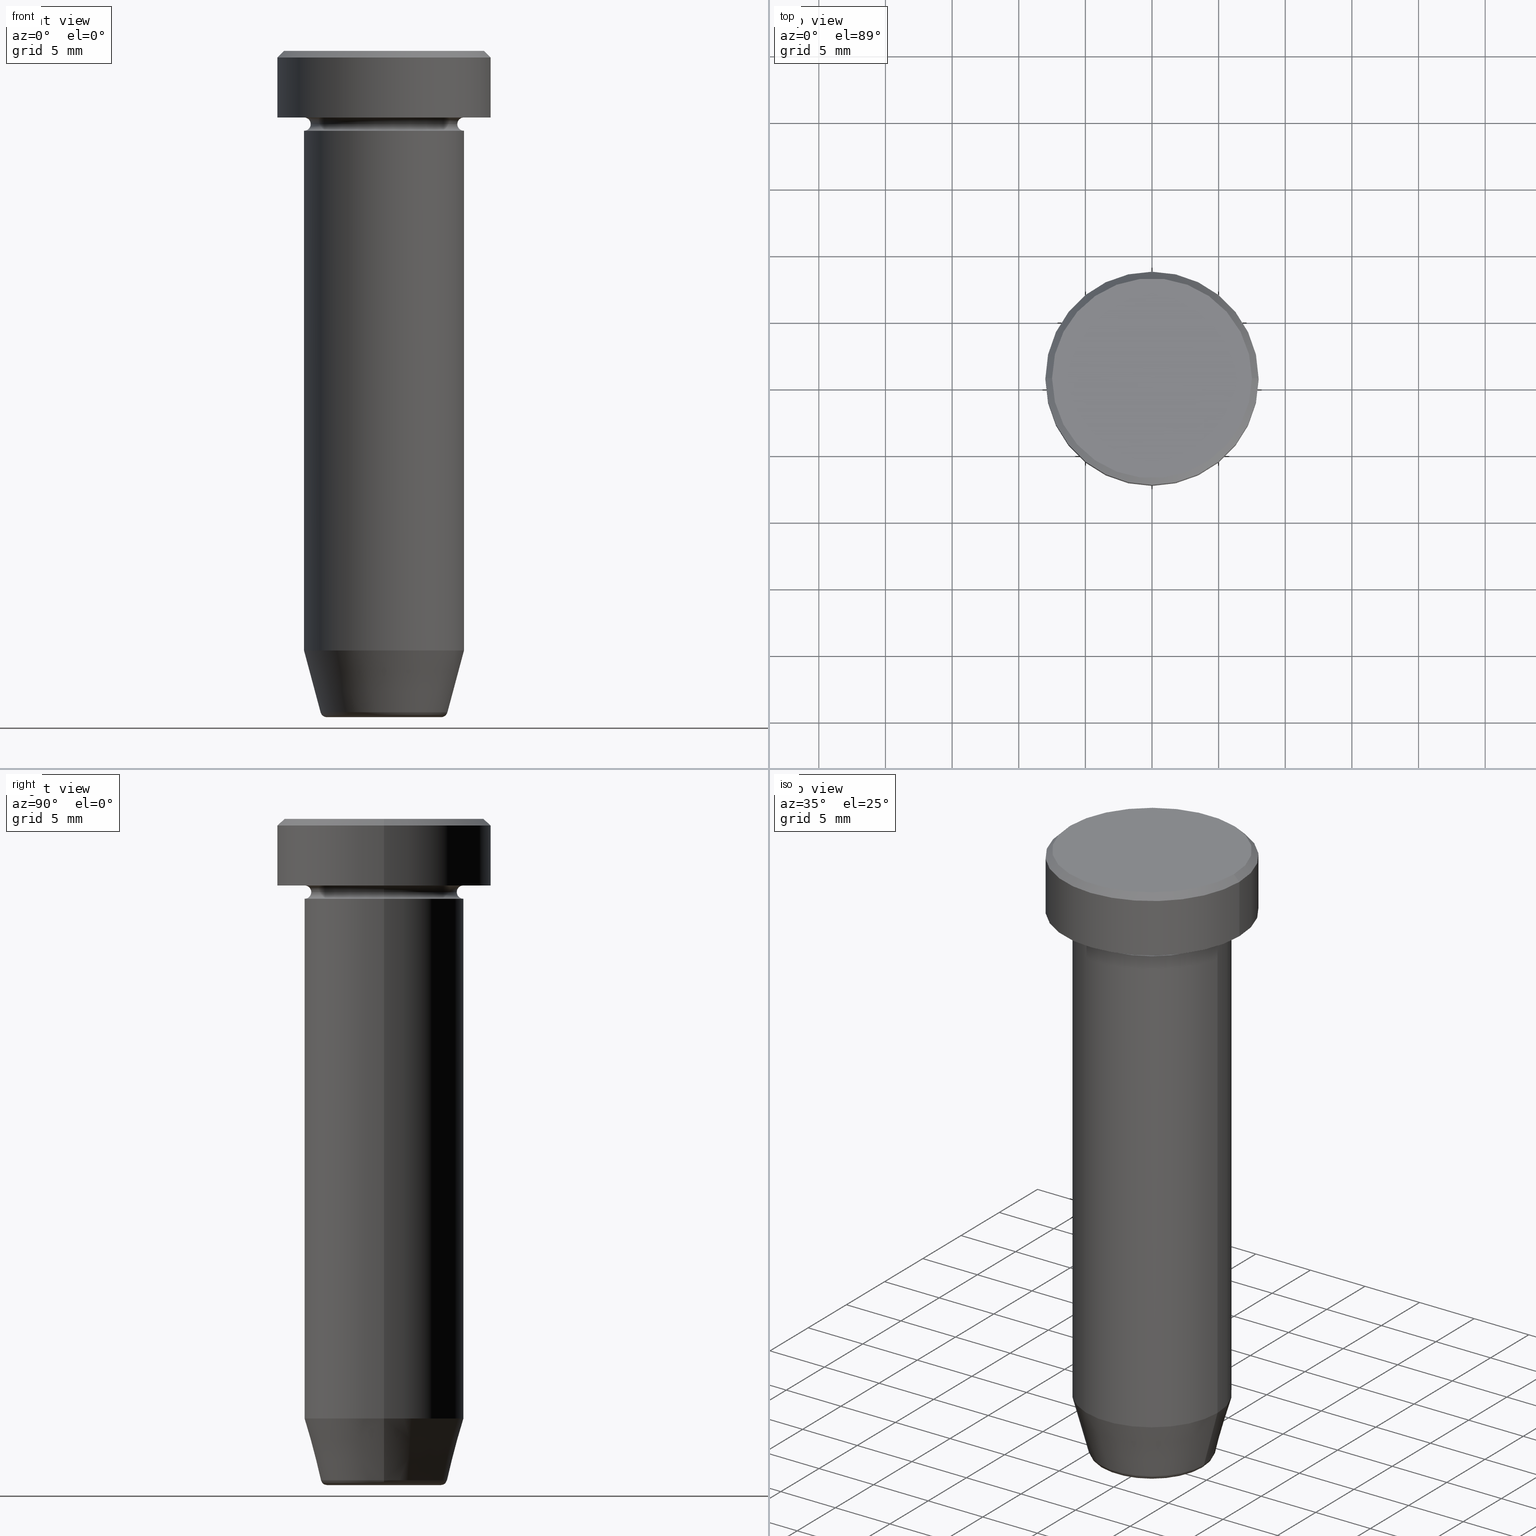
[diagram: canonical four-view strip — front | top / right | iso, engineering-drawing reading convention]
A machine part, canonical four-view strip (front | top / right | iso — engineering-drawing reading convention). The complete STEP part file that produces these views, byte-faithful:
ISO-10303-21;
HEADER;
FILE_DESCRIPTION (( 'STEP AP203' ),
    '1' );
FILE_NAME ('cc43.STEP',
    '2024-01-02T23:16:47',
    ( '' ),
    ( '' ),
    'SwSTEP 2.0',
    'SolidWorks 2019',
    '' );
FILE_SCHEMA (( 'CONFIG_CONTROL_DESIGN' ));
ENDSEC;

DATA;
#1 = CIRCLE ( 'NONE', #482, 4.276590543854903004 ) ;
#2 = LINE ( 'NONE', #74, #53 ) ;
#3 = EDGE_LOOP ( 'NONE', ( #443, #418 ) ) ;
#4 = CARTESIAN_POINT ( 'NONE',  ( 6.000000000000000000, 0.000000000000000000, -5.500000000000000000 ) ) ;
#5 = ORIENTED_EDGE ( 'NONE', *, *, #183, .F. ) ;
#6 = PERSON_AND_ORGANIZATION_ROLE ( 'design_supplier' ) ;
#7 = CARTESIAN_POINT ( 'NONE',  ( -6.000000000000000000, 7.347880794884119736E-16, -12.50000000000000000 ) ) ;
#8 = APPLICATION_CONTEXT ( 'configuration controlled 3d designs of mechanical parts and assemblies' ) ;
#9 = SECURITY_CLASSIFICATION_LEVEL ( 'unclassified' ) ;
#10 = CIRCLE ( 'NONE', #25, 8.000000000000000000 ) ;
#11 = CARTESIAN_POINT ( 'NONE',  ( 0.000000000000000000, 0.000000000000000000, 0.000000000000000000 ) ) ;
#12 = AXIS2_PLACEMENT_3D ( 'NONE', #489, #63, #444 ) ;
#13 = DIRECTION ( 'NONE',  ( 1.000000000000000000, 0.000000000000000000, 0.000000000000000000 ) ) ;
#14 = PERSON_AND_ORGANIZATION ( #270, #120 ) ;
#15 = CARTESIAN_POINT ( 'NONE',  ( -8.000000000000000000, 9.797174393178825657E-16, -0.5000000000000004441 ) ) ;
#16 = ORIENTED_EDGE ( 'NONE', *, *, #572, .T. ) ;
#17 = CARTESIAN_POINT ( 'NONE',  ( -5.500000000000000000, 7.041719095097280880E-16, -5.500000000000000000 ) ) ;
#18 = ADVANCED_FACE ( 'NONE', ( #167 ), #108, .F. ) ;
#19 = CIRCLE ( 'NONE', #119, 6.000000000000000000 ) ;
#20 = DIRECTION ( 'NONE',  ( 1.000000000000000000, 0.000000000000000000, 0.000000000000000000 ) ) ;
#21 = ORIENTED_EDGE ( 'NONE', *, *, #66, .F. ) ;
#22 = ORIENTED_EDGE ( 'NONE', *, *, #215, .T. ) ;
#23 = ORIENTED_EDGE ( 'NONE', *, *, #183, .T. ) ;
#24 = EDGE_CURVE ( 'NONE', #308, #35, #344, .T. ) ;
#25 = AXIS2_PLACEMENT_3D ( 'NONE', #304, #353, #252 ) ;
#26 = AXIS2_PLACEMENT_3D ( 'NONE', #73, #590, #546 ) ;
#27 = ORIENTED_EDGE ( 'NONE', *, *, #341, .T. ) ;
#28 = PRODUCT_DEFINITION ( 'NEZN�M�', '', #335, #182 ) ;
#29 = CARTESIAN_POINT ( 'NONE',  ( -6.000000000000000000, 7.347880794884119736E-16, -12.50000000000000000 ) ) ;
#30 = ORIENTED_EDGE ( 'NONE', *, *, #510, .T. ) ;
#31 = CARTESIAN_POINT ( 'NONE',  ( 0.000000000000000000, 0.000000000000000000, -12.50000000000000000 ) ) ;
#32 = DIRECTION ( 'NONE',  ( 1.224646799147353207E-16, 1.000000000000000000, 0.000000000000000000 ) ) ;
#33 = VERTEX_POINT ( 'NONE', #175 ) ;
#34 = CIRCLE ( 'NONE', #554, 6.000000000000000000 ) ;
#35 = VERTEX_POINT ( 'NONE', #86 ) ;
#36 = CONICAL_SURFACE ( 'NONE', #313, 7.500000000000003553, 0.7853981633974447263 ) ;
#37 = APPLICATION_CONTEXT ( 'configuration controlled 3d designs of mechanical parts and assemblies' ) ;
#38 = PERSON_AND_ORGANIZATION ( #270, #120 ) ;
#39 = DIRECTION ( 'NONE',  ( 1.000000000000000000, 0.000000000000000000, 0.000000000000000000 ) ) ;
#40 = EDGE_CURVE ( 'NONE', #35, #308, #34, .T. ) ;
#41 = EDGE_LOOP ( 'NONE', ( #593, #434, #436, #129 ) ) ;
#42 = DIRECTION ( 'NONE',  ( -0.000000000000000000, -0.000000000000000000, 1.000000000000000000 ) ) ;
#43 = PRODUCT ( 'cc43', 'cc43', '', ( #171 ) ) ;
#44 = CARTESIAN_POINT ( 'NONE',  ( -8.000000000000000000, 9.797174393178825657E-16, -5.000000000000000000 ) ) ;
#45 = CIRCLE ( 'NONE', #84, 4.276590543854903004 ) ;
#46 = APPROVAL ( #385, 'NEUR�EN�' ) ;
#47 = DIRECTION ( 'NONE',  ( -1.000000000000000000, 0.000000000000000000, -0.000000000000000000 ) ) ;
#48 = CARTESIAN_POINT ( 'NONE',  ( 6.000000000000000000, 0.000000000000000000, 0.000000000000000000 ) ) ;
#49 = DATE_AND_TIME ( #524, #518 ) ;
#50 = DIRECTION ( 'NONE',  ( 1.000000000000000000, 0.000000000000000000, 0.000000000000000000 ) ) ;
#51 = ADVANCED_FACE ( 'NONE', ( #126 ), #179, .T. ) ;
#52 = ORIENTED_EDGE ( 'NONE', *, *, #510, .F. ) ;
#53 = VECTOR ( 'NONE', #116, 1000.000000000000000 ) ;
#54 = DIRECTION ( 'NONE',  ( -0.000000000000000000, -0.000000000000000000, 1.000000000000000000 ) ) ;
#55 = CIRCLE ( 'NONE', #463, 4.759553456999439547 ) ;
#56 = ORIENTED_EDGE ( 'NONE', *, *, #267, .F. ) ;
#57 = CYLINDRICAL_SURFACE ( 'NONE', #359, 6.000000000000000000 ) ;
#58 = ADVANCED_FACE ( 'NONE', ( #315 ), #505, .F. ) ;
#59 = PERSON_AND_ORGANIZATION ( #270, #120 ) ;
#60 = CARTESIAN_POINT ( 'NONE',  ( 0.000000000000000000, 0.000000000000000000, -5.500000000000000000 ) ) ;
#61 = DIRECTION ( 'NONE',  ( -0.000000000000000000, -1.000000000000000000, -0.000000000000000000 ) ) ;
#62 = ORIENTED_EDGE ( 'NONE', *, *, #321, .F. ) ;
#63 = DIRECTION ( 'NONE',  ( 0.000000000000000000, -0.000000000000000000, 1.000000000000000000 ) ) ;
#64 = AXIS2_PLACEMENT_3D ( 'NONE', #559, #235, #514 ) ;
#65 = FACE_OUTER_BOUND ( 'NONE', #537, .T. ) ;
#66 = EDGE_CURVE ( 'NONE', #33, #205, #487, .T. ) ;
#67 = ORIENTED_EDGE ( 'NONE', *, *, #137, .F. ) ;
#68 = ORIENTED_EDGE ( 'NONE', *, *, #340, .T. ) ;
#69 = CARTESIAN_POINT ( 'NONE',  ( -8.000000000000000000, 9.797174393178825657E-16, 0.000000000000000000 ) ) ;
#70 = DIRECTION ( 'NONE',  ( -0.000000000000000000, -0.000000000000000000, 1.000000000000000000 ) ) ;
#71 = CC_DESIGN_PERSON_AND_ORGANIZATION_ASSIGNMENT ( #38, #328, ( #43 ) ) ;
#72 = EDGE_LOOP ( 'NONE', ( #460, #23, #599, #135 ) ) ;
#73 = CARTESIAN_POINT ( 'NONE',  ( 0.000000000000000000, 0.000000000000000000, -5.500000000000000000 ) ) ;
#74 = CARTESIAN_POINT ( 'NONE',  ( 6.000000000000000000, 0.000000000000000000, 0.000000000000000000 ) ) ;
#75 = CIRCLE ( 'NONE', #250, 0.5000000000000004441 ) ;
#76 = AXIS2_PLACEMENT_3D ( 'NONE', #550, #502, #217 ) ;
#77 = ORIENTED_EDGE ( 'NONE', *, *, #312, .F. ) ;
#78 = DIRECTION ( 'NONE',  ( -1.000000000000000000, 0.000000000000000000, 0.000000000000000000 ) ) ;
#79 = ORIENTED_EDGE ( 'NONE', *, *, #284, .T. ) ;
#80 = CARTESIAN_POINT ( 'NONE',  ( 4.660254037844383745, 0.000000000000000000, -50.00000000000000000 ) ) ;
#81 = ORIENTED_EDGE ( 'NONE', *, *, #24, .T. ) ;
#82 = VECTOR ( 'NONE', #199, 1000.000000000000114 ) ;
#83 = ORIENTED_EDGE ( 'NONE', *, *, #307, .F. ) ;
#84 = AXIS2_PLACEMENT_3D ( 'NONE', #522, #530, #337 ) ;
#85 = EDGE_CURVE ( 'NONE', #226, #456, #291, .T. ) ;
#86 = CARTESIAN_POINT ( 'NONE',  ( 6.000000000000000000, 0.000000000000000000, -6.000000000000000000 ) ) ;
#87 = CARTESIAN_POINT ( 'NONE',  ( 0.000000000000000000, 0.000000000000000000, 0.000000000000000000 ) ) ;
#88 = CARTESIAN_POINT ( 'NONE',  ( 8.000000000000000000, 0.000000000000000000, -0.5000000000000004441 ) ) ;
#89 = DIRECTION ( 'NONE',  ( -1.000000000000000000, 1.224646799147353454E-16, 0.000000000000000000 ) ) ;
#90 = AXIS2_PLACEMENT_3D ( 'NONE', #379, #557, #264 ) ;
#91 = VECTOR ( 'NONE', #98, 1000.000000000000000 ) ;
#92 = LINE ( 'NONE', #406, #453 ) ;
#93 = COORDINATED_UNIVERSAL_TIME_OFFSET ( 1, 0, .AHEAD. ) ;
#94 = DIRECTION ( 'NONE',  ( 1.000000000000000000, 0.000000000000000000, 0.000000000000000000 ) ) ;
#95 = UNCERTAINTY_MEASURE_WITH_UNIT (LENGTH_MEASURE( 1.000000000000000082E-05 ), #323, 'distance_accuracy_value', 'NONE');
#96 = EDGE_CURVE ( 'NONE', #226, #308, #154, .T. ) ;
#97 = PERSON_AND_ORGANIZATION_ROLE ( 'classification_officer' ) ;
#98 = DIRECTION ( 'NONE',  ( -0.000000000000000000, -0.000000000000000000, 1.000000000000000000 ) ) ;
#99 = ORIENTED_EDGE ( 'NONE', *, *, #156, .F. ) ;
#100 = AXIS2_PLACEMENT_3D ( 'NONE', #553, #373, #371 ) ;
#101 = AXIS2_PLACEMENT_3D ( 'NONE', #332, #186, #363 ) ;
#102 = DIRECTION ( 'NONE',  ( -0.000000000000000000, -0.000000000000000000, 1.000000000000000000 ) ) ;
#103 = DATE_AND_TIME ( #192, #472 ) ;
#104 = ORIENTED_EDGE ( 'NONE', *, *, #305, .F. ) ;
#105 = CARTESIAN_POINT ( 'NONE',  ( 0.000000000000000000, 0.000000000000000000, -12.50000000000000000 ) ) ;
#106 = CARTESIAN_POINT ( 'NONE',  ( 0.000000000000000000, 0.000000000000000000, -49.50000000000000000 ) ) ;
#107 = ORIENTED_EDGE ( 'NONE', *, *, #113, .F. ) ;
#108 = TOROIDAL_SURFACE ( 'NONE', #462, 6.000000000000000000, 0.5000000000000000000 ) ;
#109 = CIRCLE ( 'NONE', #64, 6.000000000000000000 ) ;
#110 = EDGE_LOOP ( 'NONE', ( #464, #535, #225, #412 ) ) ;
#111 = LINE ( 'NONE', #69, #509 ) ;
#112 = ADVANCED_FACE ( 'NONE', ( #65 ), #210, .T. ) ;
#113 = EDGE_CURVE ( 'NONE', #330, #582, #161, .T. ) ;
#114 = FACE_OUTER_BOUND ( 'NONE', #508, .T. ) ;
#115 = ORIENTED_EDGE ( 'NONE', *, *, #230, .F. ) ;
#116 = DIRECTION ( 'NONE',  ( -0.000000000000000000, -0.000000000000000000, 1.000000000000000000 ) ) ;
#117 = ORIENTED_EDGE ( 'NONE', *, *, #475, .F. ) ;
#118 = DIRECTION ( 'NONE',  ( -0.000000000000000000, -0.000000000000000000, 1.000000000000000000 ) ) ;
#119 = AXIS2_PLACEMENT_3D ( 'NONE', #166, #506, #268 ) ;
#120 = ORGANIZATION ( 'NEUR�EN�', 'NEUR�EN�', '' ) ;
#121 = EDGE_LOOP ( 'NONE', ( #107, #350, #302, #596 ) ) ;
#122 = CC_DESIGN_PERSON_AND_ORGANIZATION_ASSIGNMENT ( #239, #6, ( #335 ) ) ;
#123 = EDGE_CURVE ( 'NONE', #255, #578, #272, .T. ) ;
#124 = CARTESIAN_POINT ( 'NONE',  ( 0.000000000000000000, 0.000000000000000000, 0.000000000000000000 ) ) ;
#125 = ORIENTED_EDGE ( 'NONE', *, *, #321, .T. ) ;
#126 = FACE_OUTER_BOUND ( 'NONE', #41, .T. ) ;
#127 = DIRECTION ( 'NONE',  ( -0.000000000000000000, -0.000000000000000000, 1.000000000000000000 ) ) ;
#128 = CLOSED_SHELL ( 'NONE', ( #372, #18, #543, #51, #376, #176, #428, #290, #273, #386, #584, #299, #200 ) ) ;
#129 = ORIENTED_EDGE ( 'NONE', *, *, #187, .F. ) ;
#130 = AXIS2_PLACEMENT_3D ( 'NONE', #316, #498, #542 ) ;
#131 = DIRECTION ( 'NONE',  ( 1.000000000000000000, 0.000000000000000000, 0.000000000000000000 ) ) ;
#132 = EDGE_LOOP ( 'NONE', ( #117, #287, #67, #438 ) ) ;
#133 = CARTESIAN_POINT ( 'NONE',  ( 0.000000000000000000, 0.000000000000000000, -5.500000000000000000 ) ) ;
#134 = LINE ( 'NONE', #48, #91 ) ;
#135 = ORIENTED_EDGE ( 'NONE', *, *, #572, .F. ) ;
#136 = SHAPE_DEFINITION_REPRESENTATION ( #231, #449 ) ;
#137 = EDGE_CURVE ( 'NONE', #357, #582, #10, .T. ) ;
#138 = AXIS2_PLACEMENT_3D ( 'NONE', #286, #343, #395 ) ;
#139 = CC_DESIGN_APPROVAL ( #46, ( #262 ) ) ;
#140 = CYLINDRICAL_SURFACE ( 'NONE', #491, 8.000000000000000000 ) ;
#141 = CALENDAR_DATE ( 2024, 3, 1 ) ;
#142 = CARTESIAN_POINT ( 'NONE',  ( 7.500000000000003553, 9.491012693391989759E-16, 0.000000000000000000 ) ) ;
#143 = EDGE_CURVE ( 'NONE', #582, #357, #241, .T. ) ;
#144 = DIRECTION ( 'NONE',  ( -0.000000000000000000, -0.000000000000000000, 1.000000000000000000 ) ) ;
#145 = APPROVAL_STATUS ( 'not_yet_approved' ) ;
#146 = VECTOR ( 'NONE', #461, 1000.000000000000114 ) ;
#147 = CARTESIAN_POINT ( 'NONE',  ( 0.000000000000000000, 0.000000000000000000, 0.000000000000000000 ) ) ;
#148 = CARTESIAN_POINT ( 'NONE',  ( 0.000000000000000000, 6.000000000000000000, -12.50000000000000000 ) ) ;
#149 = ORIENTED_EDGE ( 'NONE', *, *, #258, .T. ) ;
#150 = COORDINATED_UNIVERSAL_TIME_OFFSET ( 1, 0, .AHEAD. ) ;
#151 = DIRECTION ( 'NONE',  ( -0.000000000000000000, -0.000000000000000000, 1.000000000000000000 ) ) ;
#152 = DIRECTION ( 'NONE',  ( -1.000000000000000000, -1.224646799147351482E-16, 0.000000000000000000 ) ) ;
#153 = ORIENTED_EDGE ( 'NONE', *, *, #165, .F. ) ;
#154 = LINE ( 'NONE', #248, #580 ) ;
#155 = VERTEX_POINT ( 'NONE', #400 ) ;
#156 = EDGE_CURVE ( 'NONE', #417, #306, #358, .T. ) ;
#157 = CARTESIAN_POINT ( 'NONE',  ( 0.000000000000000000, 0.000000000000000000, -49.50000000000000000 ) ) ;
#158 = VECTOR ( 'NONE', #70, 1000.000000000000000 ) ;
#159 = AXIS2_PLACEMENT_3D ( 'NONE', #157, #212, #539 ) ;
#160 = CIRCLE ( 'NONE', #503, 8.000000000000000000 ) ;
#161 = LINE ( 'NONE', #575, #82 ) ;
#162 = ORIENTED_EDGE ( 'NONE', *, *, #123, .F. ) ;
#163 = CARTESIAN_POINT ( 'NONE',  ( 0.000000000000000000, 0.000000000000000000, -0.5000000000000004441 ) ) ;
#164 = EDGE_LOOP ( 'NONE', ( #27, #249, #153, #83 ) ) ;
#165 = EDGE_CURVE ( 'NONE', #513, #205, #169, .T. ) ;
#166 = CARTESIAN_POINT ( 'NONE',  ( 0.000000000000000000, 0.000000000000000000, -12.50000000000000000 ) ) ;
#167 = FACE_OUTER_BOUND ( 'NONE', #451, .T. ) ;
#168 = LINE ( 'NONE', #80, #146 ) ;
#169 = CIRCLE ( 'NONE', #178, 6.000000000000000000 ) ;
#170 = FACE_BOUND ( 'NONE', #414, .T. ) ;
#171 = MECHANICAL_CONTEXT ( 'NONE', #8, 'mechanical' ) ;
#172 = EDGE_CURVE ( 'NONE', #446, #364, #75, .T. ) ;
#173 = DIRECTION ( 'NONE',  ( -1.000000000000000000, 0.000000000000000000, 0.000000000000000000 ) ) ;
#174 = DIRECTION ( 'NONE',  ( 0.000000000000000000, 0.000000000000000000, 1.000000000000000000 ) ) ;
#175 = CARTESIAN_POINT ( 'NONE',  ( -6.000000000000000000, 7.347880794884119736E-16, -45.00000000000000000 ) ) ;
#176 = ADVANCED_FACE ( 'NONE', ( #391 ), #540, .T. ) ;
#177 = ADVANCED_FACE ( 'NONE', ( #114 ), #311, .T. ) ;
#178 = AXIS2_PLACEMENT_3D ( 'NONE', #528, #534, #494 ) ;
#179 = CYLINDRICAL_SURFACE ( 'NONE', #90, 6.000000000000000000 ) ;
#180 = TOROIDAL_SURFACE ( 'NONE', #527, 6.000000000000000000, 0.5000000000000000000 ) ;
#181 = PLANE ( 'NONE',  #193 ) ;
#182 = DESIGN_CONTEXT ( 'detailed design', #37, 'design' ) ;
#183 = EDGE_CURVE ( 'NONE', #354, #33, #297, .T. ) ;
#184 = ORIENTED_EDGE ( 'NONE', *, *, #40, .T. ) ;
#185 =( NAMED_UNIT ( * ) PLANE_ANGLE_UNIT ( ) SI_UNIT ( $, .RADIAN. ) );
#186 = DIRECTION ( 'NONE',  ( -0.000000000000000000, -0.000000000000000000, 1.000000000000000000 ) ) ;
#187 = EDGE_CURVE ( 'NONE', #456, #35, #2, .T. ) ;
#188 = COORDINATED_UNIVERSAL_TIME_OFFSET ( 1, 0, .AHEAD. ) ;
#189 = CARTESIAN_POINT ( 'NONE',  ( 0.000000000000000000, 0.000000000000000000, -5.000000000000000000 ) ) ;
#190 = AXIS2_PLACEMENT_3D ( 'NONE', #490, #570, #20 ) ;
#191 = EDGE_CURVE ( 'NONE', #155, #354, #377, .T. ) ;
#192 = CALENDAR_DATE ( 2024, 3, 1 ) ;
#193 = AXIS2_PLACEMENT_3D ( 'NONE', #458, #238, #47 ) ;
#194 = DIRECTION ( 'NONE',  ( -0.7071067811865451302, 0.000000000000000000, -0.7071067811865500152 ) ) ;
#195 = EDGE_CURVE ( 'NONE', #255, #35, #526, .T. ) ;
#196 = CARTESIAN_POINT ( 'NONE',  ( 0.000000000000000000, 0.000000000000000000, 0.000000000000000000 ) ) ;
#197 = PERSON_AND_ORGANIZATION ( #270, #120 ) ;
#198 = DIRECTION ( 'NONE',  ( -0.000000000000000000, -0.000000000000000000, 1.000000000000000000 ) ) ;
#199 = DIRECTION ( 'NONE',  ( 0.7071067811865451302, 8.659560562354903276E-17, -0.7071067811865500152 ) ) ;
#200 = ADVANCED_FACE ( 'NONE', ( #455 ), #36, .T. ) ;
#201 = ORIENTED_EDGE ( 'NONE', *, *, #195, .T. ) ;
#202 = AXIS2_PLACEMENT_3D ( 'NONE', #334, #473, #384 ) ;
#203 = AXIS2_PLACEMENT_3D ( 'NONE', #105, #520, #289 ) ;
#204 = DIRECTION ( 'NONE',  ( -0.000000000000000000, -0.000000000000000000, 1.000000000000000000 ) ) ;
#205 = VERTEX_POINT ( 'NONE', #7 ) ;
#206 = CC_DESIGN_PERSON_AND_ORGANIZATION_ASSIGNMENT ( #197, #342, ( #28 ) ) ;
#207 = DIRECTION ( 'NONE',  ( 0.000000000000000000, 0.000000000000000000, -1.000000000000000000 ) ) ;
#208 = EDGE_LOOP ( 'NONE', ( #5, #488, #16, #104 ) ) ;
#209 = DIRECTION ( 'NONE',  ( -1.000000000000000000, 0.000000000000000000, 0.000000000000000000 ) ) ;
#210 = CYLINDRICAL_SURFACE ( 'NONE', #281, 6.000000000000000000 ) ;
#211 = ORIENTED_EDGE ( 'NONE', *, *, #191, .T. ) ;
#212 = DIRECTION ( 'NONE',  ( -0.000000000000000000, -0.000000000000000000, 1.000000000000000000 ) ) ;
#213 = CIRCLE ( 'NONE', #138, 6.000000000000000000 ) ;
#214 = DIRECTION ( 'NONE',  ( 1.000000000000000000, 0.000000000000000000, 0.000000000000000000 ) ) ;
#215 = EDGE_CURVE ( 'NONE', #578, #306, #420, .T. ) ;
#216 = EDGE_LOOP ( 'NONE', ( #162, #407, #398, #495 ) ) ;
#217 = DIRECTION ( 'NONE',  ( 1.000000000000000000, 0.000000000000000000, 0.000000000000000000 ) ) ;
#218 = EDGE_CURVE ( 'NONE', #253, #330, #333, .T. ) ;
#219 = CARTESIAN_POINT ( 'NONE',  ( -7.500000000000003553, 0.000000000000000000, 0.000000000000000000 ) ) ;
#220 = ORIENTED_EDGE ( 'NONE', *, *, #137, .T. ) ;
#221 = DIRECTION ( 'NONE',  ( -1.000000000000000000, 0.000000000000000000, -0.000000000000000000 ) ) ;
#222 = DIRECTION ( 'NONE',  ( -1.000000000000000000, 0.000000000000000000, 0.000000000000000000 ) ) ;
#223 = ORIENTED_EDGE ( 'NONE', *, *, #410, .F. ) ;
#224 = CARTESIAN_POINT ( 'NONE',  ( 0.000000000000000000, 0.000000000000000000, 0.000000000000000000 ) ) ;
#225 = ORIENTED_EDGE ( 'NONE', *, *, #187, .T. ) ;
#226 = VERTEX_POINT ( 'NONE', #29 ) ;
#227 = FACE_OUTER_BOUND ( 'NONE', #532, .T. ) ;
#228 = EDGE_LOOP ( 'NONE', ( #573, #541 ) ) ;
#229 = DIRECTION ( 'NONE',  ( 1.000000000000000000, 0.000000000000000000, 0.000000000000000000 ) ) ;
#230 = EDGE_CURVE ( 'NONE', #354, #364, #55, .T. ) ;
#231 = PRODUCT_DEFINITION_SHAPE ( 'NONE', 'NONE',  #28 ) ;
#232 = AXIS2_PLACEMENT_3D ( 'NONE', #106, #301, #544 ) ;
#233 = CIRCLE ( 'NONE', #76, 7.500000000000003553 ) ;
#234 = APPROVAL_PERSON_ORGANIZATION ( #237, #409, #426 ) ;
#235 = DIRECTION ( 'NONE',  ( -0.000000000000000000, -0.000000000000000000, 1.000000000000000000 ) ) ;
#236 = CC_DESIGN_PERSON_AND_ORGANIZATION_ASSIGNMENT ( #519, #476, ( #335 ) ) ;
#237 = PERSON_AND_ORGANIZATION ( #270, #120 ) ;
#238 = DIRECTION ( 'NONE',  ( 0.000000000000000000, 0.000000000000000000, -1.000000000000000000 ) ) ;
#239 = PERSON_AND_ORGANIZATION ( #270, #120 ) ;
#240 = FACE_OUTER_BOUND ( 'NONE', #228, .T. ) ;
#241 = CIRCLE ( 'NONE', #441, 8.000000000000000000 ) ;
#242 = CALENDAR_DATE ( 2024, 3, 1 ) ;
#243 = CONICAL_SURFACE ( 'NONE', #130, 4.660254037844383745, 0.2617993877991497409 ) ;
#244 = CARTESIAN_POINT ( 'NONE',  ( 0.000000000000000000, 0.000000000000000000, -50.00000000000000000 ) ) ;
#245 = ORIENTED_EDGE ( 'NONE', *, *, #195, .F. ) ;
#246 = DIRECTION ( 'NONE',  ( 1.000000000000000000, 0.000000000000000000, 0.000000000000000000 ) ) ;
#247 = CARTESIAN_POINT ( 'NONE',  ( -7.500000000000003553, 0.000000000000000000, 0.000000000000000000 ) ) ;
#248 = CARTESIAN_POINT ( 'NONE',  ( -6.000000000000000000, 7.347880794884119736E-16, 0.000000000000000000 ) ) ;
#249 = ORIENTED_EDGE ( 'NONE', *, *, #66, .T. ) ;
#250 = AXIS2_PLACEMENT_3D ( 'NONE', #356, #447, #361 ) ;
#251 = CARTESIAN_POINT ( 'NONE',  ( 0.000000000000000000, 0.000000000000000000, -49.62940952255126348 ) ) ;
#252 = DIRECTION ( 'NONE',  ( 1.000000000000000000, 0.000000000000000000, 0.000000000000000000 ) ) ;
#253 = VERTEX_POINT ( 'NONE', #219 ) ;
#254 = EDGE_CURVE ( 'NONE', #586, #271, #581, .T. ) ;
#255 = VERTEX_POINT ( 'NONE', #318 ) ;
#256 = CARTESIAN_POINT ( 'NONE',  ( 0.000000000000000000, 0.000000000000000000, 0.000000000000000000 ) ) ;
#257 = ORIENTED_EDGE ( 'NONE', *, *, #85, .F. ) ;
#258 = EDGE_CURVE ( 'NONE', #271, #582, #92, .T. ) ;
#259 = CARTESIAN_POINT ( 'NONE',  ( 6.000000000000000000, 0.000000000000000000, -12.50000000000000000 ) ) ;
#260 = AXIS2_PLACEMENT_3D ( 'NONE', #4, #547, #263 ) ;
#261 = AXIS2_PLACEMENT_3D ( 'NONE', #251, #54, #568 ) ;
#262 = SECURITY_CLASSIFICATION ( '', '', #9 ) ;
#263 = DIRECTION ( 'NONE',  ( 0.000000000000000000, 0.000000000000000000, -1.000000000000000000 ) ) ;
#264 = DIRECTION ( 'NONE',  ( 1.000000000000000000, 0.000000000000000000, 0.000000000000000000 ) ) ;
#265 = CC_DESIGN_PERSON_AND_ORGANIZATION_ASSIGNMENT ( #529, #97, ( #262 ) ) ;
#266 = PLANE ( 'NONE',  #501 ) ;
#267 = EDGE_CURVE ( 'NONE', #456, #226, #19, .T. ) ;
#268 = DIRECTION ( 'NONE',  ( 1.000000000000000000, 0.000000000000000000, 0.000000000000000000 ) ) ;
#269 = ORIENTED_EDGE ( 'NONE', *, *, #143, .T. ) ;
#270 = PERSON ( 'NEUR�EN�', 'NEUR�EN�', 'NEUR�EN�', ('NEUR�EN�'), ('NEUR�EN�'), ('NEUR�EN�') ) ;
#271 = VERTEX_POINT ( 'NONE', #278 ) ;
#272 = CIRCLE ( 'NONE', #592, 0.5000000000000004441 ) ;
#273 = ADVANCED_FACE ( 'NONE', ( #170, #474 ), #181, .T. ) ;
#274 = AXIS2_PLACEMENT_3D ( 'NONE', #60, #144, #525 ) ;
#275 = LOCAL_TIME ( 0, 16, 47.00000000000000000, #295 ) ;
#276 = ORIENTED_EDGE ( 'NONE', *, *, #355, .F. ) ;
#277 = EDGE_LOOP ( 'NONE', ( #483, #125 ) ) ;
#278 = CARTESIAN_POINT ( 'NONE',  ( 8.000000000000000000, 0.000000000000000000, -5.000000000000000000 ) ) ;
#279 = CARTESIAN_POINT ( 'NONE',  ( 0.000000000000000000, 0.000000000000000000, -5.000000000000000000 ) ) ;
#280 = DIRECTION ( 'NONE',  ( 1.000000000000000000, 0.000000000000000000, 0.000000000000000000 ) ) ;
#281 = AXIS2_PLACEMENT_3D ( 'NONE', #256, #102, #214 ) ;
#282 = AXIS2_PLACEMENT_3D ( 'NONE', #516, #118, #280 ) ;
#283 = DIRECTION ( 'NONE',  ( -0.000000000000000000, -0.000000000000000000, 1.000000000000000000 ) ) ;
#284 = EDGE_CURVE ( 'NONE', #417, #308, #383, .T. ) ;
#285 = DATE_AND_TIME ( #389, #432 ) ;
#286 = CARTESIAN_POINT ( 'NONE',  ( 0.000000000000000000, 0.000000000000000000, -45.00000000000000000 ) ) ;
#287 = ORIENTED_EDGE ( 'NONE', *, *, #113, .T. ) ;
#288 = APPROVAL_DATE_TIME ( #521, #46 ) ;
#289 = DIRECTION ( 'NONE',  ( 1.000000000000000000, 0.000000000000000000, 0.000000000000000000 ) ) ;
#290 = ADVANCED_FACE ( 'NONE', ( #551 ), #469, .T. ) ;
#291 = CIRCLE ( 'NONE', #190, 6.000000000000000000 ) ;
#292 = APPROVAL_ROLE ( '' ) ;
#293 = TOROIDAL_SURFACE ( 'NONE', #26, 6.000000000000000000, 0.5000000000000000000 ) ;
#294 = FACE_OUTER_BOUND ( 'NONE', #298, .T. ) ;
#295 = COORDINATED_UNIVERSAL_TIME_OFFSET ( 1, 0, .AHEAD. ) ;
#296 = DIRECTION ( 'NONE',  ( 1.000000000000000000, 0.000000000000000000, 0.000000000000000000 ) ) ;
#297 = LINE ( 'NONE', #499, #324 ) ;
#298 = EDGE_LOOP ( 'NONE', ( #448, #30, #220, #362 ) ) ;
#299 = ADVANCED_FACE ( 'NONE', ( #421 ), #180, .F. ) ;
#300 = CARTESIAN_POINT ( 'NONE',  ( 0.000000000000000000, 0.000000000000000000, 0.000000000000000000 ) ) ;
#301 = DIRECTION ( 'NONE',  ( -0.000000000000000000, -0.000000000000000000, 1.000000000000000000 ) ) ;
#302 = ORIENTED_EDGE ( 'NONE', *, *, #329, .T. ) ;
#303 = CLOSED_SHELL ( 'NONE', ( #177, #325, #416, #558, #112, #515, #58, #471 ) ) ;
#304 = CARTESIAN_POINT ( 'NONE',  ( 0.000000000000000000, 0.000000000000000000, -0.5000000000000004441 ) ) ;
#305 = EDGE_CURVE ( 'NONE', #33, #393, #109, .T. ) ;
#306 = VERTEX_POINT ( 'NONE', #425 ) ;
#307 = EDGE_CURVE ( 'NONE', #393, #513, #134, .T. ) ;
#308 = VERTEX_POINT ( 'NONE', #480 ) ;
#309 = CARTESIAN_POINT ( 'NONE',  ( -4.276590543854903004, 5.237312920795746049E-16, -49.50000000000000000 ) ) ;
#310 = EDGE_LOOP ( 'NONE', ( #56, #257 ) ) ;
#311 = TOROIDAL_SURFACE ( 'NONE', #232, 4.276590543854903004, 0.5000000000000000000 ) ;
#312 = EDGE_CURVE ( 'NONE', #155, #446, #45, .T. ) ;
#313 = AXIS2_PLACEMENT_3D ( 'NONE', #87, #591, #78 ) ;
#314 = CARTESIAN_POINT ( 'NONE',  ( 0.000000000000000000, 0.000000000000000000, -49.62940952255126348 ) ) ;
#315 = FACE_OUTER_BOUND ( 'NONE', #3, .T. ) ;
#316 = CARTESIAN_POINT ( 'NONE',  ( 0.000000000000000000, 0.000000000000000000, -50.00000000000000000 ) ) ;
#317 = EDGE_CURVE ( 'NONE', #255, #417, #413, .T. ) ;
#318 = CARTESIAN_POINT ( 'NONE',  ( 5.500000000000000000, 0.000000000000000000, -5.500000000000000000 ) ) ;
#319 = EDGE_LOOP ( 'NONE', ( #523, #223, #459, #115 ) ) ;
#320 = CARTESIAN_POINT ( 'NONE',  ( 0.000000000000000000, 0.000000000000000000, -5.500000000000000000 ) ) ;
#321 = EDGE_CURVE ( 'NONE', #205, #513, #326, .T. ) ;
#322 = ORIENTED_EDGE ( 'NONE', *, *, #340, .F. ) ;
#323 =( LENGTH_UNIT ( ) NAMED_UNIT ( * ) SI_UNIT ( .MILLI., .METRE. ) );
#324 = VECTOR ( 'NONE', #411, 1000.000000000000114 ) ;
#325 = ADVANCED_FACE ( 'NONE', ( #566 ), #423, .T. ) ;
#326 = CIRCLE ( 'NONE', #203, 6.000000000000000000 ) ;
#327 = DIRECTION ( 'NONE',  ( 0.000000000000000000, 0.000000000000000000, -1.000000000000000000 ) ) ;
#328 = PERSON_AND_ORGANIZATION_ROLE ( 'design_owner' ) ;
#329 = EDGE_CURVE ( 'NONE', #253, #357, #574, .T. ) ;
#330 = VERTEX_POINT ( 'NONE', #142 ) ;
#331 = DIRECTION ( 'NONE',  ( -1.000000000000000000, 0.000000000000000000, 0.000000000000000000 ) ) ;
#332 = CARTESIAN_POINT ( 'NONE',  ( 0.000000000000000000, 0.000000000000000000, -5.000000000000000000 ) ) ;
#333 = CIRCLE ( 'NONE', #282, 7.500000000000003553 ) ;
#334 = CARTESIAN_POINT ( 'NONE',  ( 0.000000000000000000, 4.553649124439118623E-15, -50.00000000000000000 ) ) ;
#335 = PRODUCT_DEFINITION_FORMATION_WITH_SPECIFIED_SOURCE ( 'LIBOVOLN�', '', #43, .NOT_KNOWN. ) ;
#336 = APPROVAL_DATE_TIME ( #565, #481 ) ;
#337 = DIRECTION ( 'NONE',  ( 1.000000000000000000, 0.000000000000000000, 0.000000000000000000 ) ) ;
#338 = COORDINATED_UNIVERSAL_TIME_OFFSET ( 1, 0, .AHEAD. ) ;
#339 = DIRECTION ( 'NONE',  ( -1.000000000000000000, 0.000000000000000000, 0.000000000000000000 ) ) ;
#340 = EDGE_CURVE ( 'NONE', #417, #255, #392, .T. ) ;
#341 = EDGE_CURVE ( 'NONE', #393, #33, #213, .T. ) ;
#342 = PERSON_AND_ORGANIZATION_ROLE ( 'creator' ) ;
#343 = DIRECTION ( 'NONE',  ( -0.000000000000000000, -0.000000000000000000, 1.000000000000000000 ) ) ;
#344 = CIRCLE ( 'NONE', #100, 6.000000000000000000 ) ;
#345 = APPROVAL_DATE_TIME ( #49, #409 ) ;
#346 = AXIS2_PLACEMENT_3D ( 'NONE', #244, #564, #13 ) ;
#347 = CC_DESIGN_SECURITY_CLASSIFICATION ( #262, ( #335 ) ) ;
#348 = FACE_OUTER_BOUND ( 'NONE', #164, .T. ) ;
#349 = DIRECTION ( 'NONE',  ( 0.000000000000000000, 0.000000000000000000, -1.000000000000000000 ) ) ;
#350 = ORIENTED_EDGE ( 'NONE', *, *, #218, .F. ) ;
#351 = APPROVAL_ROLE ( '' ) ;
#352 = CARTESIAN_POINT ( 'NONE',  ( 0.000000000000000000, 0.000000000000000000, -5.500000000000000000 ) ) ;
#353 = DIRECTION ( 'NONE',  ( 0.000000000000000000, 0.000000000000000000, -1.000000000000000000 ) ) ;
#354 = VERTEX_POINT ( 'NONE', #429 ) ;
#355 = EDGE_CURVE ( 'NONE', #364, #354, #442, .T. ) ;
#356 = CARTESIAN_POINT ( 'NONE',  ( 4.276590543854903004, 0.000000000000000000, -49.50000000000000000 ) ) ;
#357 = VERTEX_POINT ( 'NONE', #15 ) ;
#358 = CIRCLE ( 'NONE', #422, 0.5000000000000004441 ) ;
#359 = AXIS2_PLACEMENT_3D ( 'NONE', #300, #204, #246 ) ;
#360 = APPROVAL_PERSON_ORGANIZATION ( #14, #481, #292 ) ;
#361 = DIRECTION ( 'NONE',  ( 0.000000000000000000, 0.000000000000000000, -1.000000000000000000 ) ) ;
#362 = ORIENTED_EDGE ( 'NONE', *, *, #258, .F. ) ;
#363 = DIRECTION ( 'NONE',  ( -1.000000000000000000, 0.000000000000000000, 0.000000000000000000 ) ) ;
#364 = VERTEX_POINT ( 'NONE', #437 ) ;
#365 = FACE_OUTER_BOUND ( 'NONE', #277, .T. ) ;
#366 = DIRECTION ( 'NONE',  ( 1.224646799147353207E-16, 1.000000000000000000, 0.000000000000000000 ) ) ;
#367 = CARTESIAN_POINT ( 'NONE',  ( 0.000000000000000000, 0.000000000000000000, -5.500000000000000000 ) ) ;
#368 = AXIS2_PLACEMENT_3D ( 'NONE', #352, #387, #296 ) ;
#369 =( GEOMETRIC_REPRESENTATION_CONTEXT ( 3 ) GLOBAL_UNCERTAINTY_ASSIGNED_CONTEXT ( ( #95 ) ) GLOBAL_UNIT_ASSIGNED_CONTEXT ( ( #323, #185, #415 ) ) REPRESENTATION_CONTEXT ( 'NONE', 'WORKASPACE' ) );
#370 = DIRECTION ( 'NONE',  ( -1.000000000000000000, 1.224646799147351482E-16, 0.000000000000000000 ) ) ;
#371 = DIRECTION ( 'NONE',  ( 1.000000000000000000, 0.000000000000000000, 0.000000000000000000 ) ) ;
#372 = ADVANCED_FACE ( 'NONE', ( #562 ), #470, .T. ) ;
#373 = DIRECTION ( 'NONE',  ( -0.000000000000000000, -0.000000000000000000, 1.000000000000000000 ) ) ;
#374 = CC_DESIGN_DATE_AND_TIME_ASSIGNMENT ( #103, #485, ( #262 ) ) ;
#375 = DIRECTION ( 'NONE',  ( 1.000000000000000000, 0.000000000000000000, 0.000000000000000000 ) ) ;
#376 = ADVANCED_FACE ( 'NONE', ( #294 ), #140, .T. ) ;
#377 = CIRCLE ( 'NONE', #452, 0.4999999999999995559 ) ;
#378 = AXIS2_PLACEMENT_3D ( 'NONE', #124, #42, #229 ) ;
#379 = CARTESIAN_POINT ( 'NONE',  ( 0.000000000000000000, 0.000000000000000000, 0.000000000000000000 ) ) ;
#380 = DIRECTION ( 'NONE',  ( -0.000000000000000000, -0.000000000000000000, 1.000000000000000000 ) ) ;
#381 = DIRECTION ( 'NONE',  ( 0.000000000000000000, 0.000000000000000000, -1.000000000000000000 ) ) ;
#382 = DIRECTION ( 'NONE',  ( -0.000000000000000000, -0.000000000000000000, 1.000000000000000000 ) ) ;
#383 = CIRCLE ( 'NONE', #594, 0.5000000000000004441 ) ;
#384 = DIRECTION ( 'NONE',  ( 1.000000000000000000, 0.000000000000000000, 0.000000000000000000 ) ) ;
#385 = APPROVAL_STATUS ( 'not_yet_approved' ) ;
#386 = ADVANCED_FACE ( 'NONE', ( #435 ), #478, .T. ) ;
#387 = DIRECTION ( 'NONE',  ( -0.000000000000000000, -0.000000000000000000, 1.000000000000000000 ) ) ;
#388 = DIRECTION ( 'NONE',  ( 1.000000000000000000, 0.000000000000000000, 0.000000000000000000 ) ) ;
#389 = CALENDAR_DATE ( 2024, 3, 1 ) ;
#390 = CARTESIAN_POINT ( 'NONE',  ( 0.000000000000000000, 0.000000000000000000, -50.00000000000000000 ) ) ;
#391 = FACE_OUTER_BOUND ( 'NONE', #310, .T. ) ;
#392 = CIRCLE ( 'NONE', #274, 5.500000000000000000 ) ;
#393 = VERTEX_POINT ( 'NONE', #484 ) ;
#394 = AXIS2_PLACEMENT_3D ( 'NONE', #224, #174, #131 ) ;
#395 = DIRECTION ( 'NONE',  ( 1.000000000000000000, 0.000000000000000000, 0.000000000000000000 ) ) ;
#396 = CARTESIAN_POINT ( 'NONE',  ( 6.000000000000000000, 7.347880794884119736E-16, -5.500000000000000000 ) ) ;
#397 = ORIENTED_EDGE ( 'NONE', *, *, #433, .T. ) ;
#398 = ORIENTED_EDGE ( 'NONE', *, *, #156, .T. ) ;
#399 = FACE_OUTER_BOUND ( 'NONE', #319, .T. ) ;
#400 = CARTESIAN_POINT ( 'NONE',  ( -4.276590543854903004, 5.533042413640413448E-16, -50.00000000000000000 ) ) ;
#401 = ORIENTED_EDGE ( 'NONE', *, *, #433, .F. ) ;
#402 = TOROIDAL_SURFACE ( 'NONE', #159, 4.276590543854903004, 0.5000000000000000000 ) ;
#403 = CARTESIAN_POINT ( 'NONE',  ( 6.000000000000000000, 0.000000000000000000, -12.50000000000000000 ) ) ;
#404 = ORIENTED_EDGE ( 'NONE', *, *, #305, .T. ) ;
#405 = FACE_OUTER_BOUND ( 'NONE', #589, .T. ) ;
#406 = CARTESIAN_POINT ( 'NONE',  ( 8.000000000000000000, 0.000000000000000000, 0.000000000000000000 ) ) ;
#407 = ORIENTED_EDGE ( 'NONE', *, *, #317, .T. ) ;
#408 = DIRECTION ( 'NONE',  ( 0.000000000000000000, 0.000000000000000000, -1.000000000000000000 ) ) ;
#409 = APPROVAL ( #145, 'NEUR�EN�' ) ;
#410 = EDGE_CURVE ( 'NONE', #446, #155, #1, .T. ) ;
#411 = DIRECTION ( 'NONE',  ( -0.2588190451025210170, 3.169619151431768639E-17, 0.9659258262890680902 ) ) ;
#412 = ORIENTED_EDGE ( 'NONE', *, *, #24, .F. ) ;
#413 = CIRCLE ( 'NONE', #368, 5.500000000000000000 ) ;
#414 = EDGE_LOOP ( 'NONE', ( #397, #22 ) ) ;
#415 =( NAMED_UNIT ( * ) SI_UNIT ( $, .STERADIAN. ) SOLID_ANGLE_UNIT ( ) );
#416 = ADVANCED_FACE ( 'NONE', ( #348 ), #57, .T. ) ;
#417 = VERTEX_POINT ( 'NONE', #17 ) ;
#418 = ORIENTED_EDGE ( 'NONE', *, *, #312, .T. ) ;
#419 = DIRECTION ( 'NONE',  ( 1.000000000000000000, 0.000000000000000000, 0.000000000000000000 ) ) ;
#420 = CIRCLE ( 'NONE', #101, 6.000000000000000000 ) ;
#421 = FACE_OUTER_BOUND ( 'NONE', #216, .T. ) ;
#422 = AXIS2_PLACEMENT_3D ( 'NONE', #536, #61, #579 ) ;
#423 = CONICAL_SURFACE ( 'NONE', #346, 4.660254037844383745, 0.2617993877991497409 ) ;
#424 = APPROVAL_PERSON_ORGANIZATION ( #59, #46, #351 ) ;
#425 = CARTESIAN_POINT ( 'NONE',  ( -6.000000000000000000, 0.000000000000000000, -4.999999999999999112 ) ) ;
#426 = APPROVAL_ROLE ( '' ) ;
#427 = DIRECTION ( 'NONE',  ( -0.000000000000000000, -0.000000000000000000, 1.000000000000000000 ) ) ;
#428 = ADVANCED_FACE ( 'NONE', ( #240 ), #533, .T. ) ;
#429 = CARTESIAN_POINT ( 'NONE',  ( -4.759553456999439547, 6.588326350684602264E-16, -49.62940952255126348 ) ) ;
#430 = AXIS2_PLACEMENT_3D ( 'NONE', #148, #349, #531 ) ;
#431 = AXIS2_PLACEMENT_3D ( 'NONE', #189, #382, #209 ) ;
#432 = LOCAL_TIME ( 0, 16, 47.00000000000000000, #93 ) ;
#433 = EDGE_CURVE ( 'NONE', #306, #578, #555, .T. ) ;
#434 = ORIENTED_EDGE ( 'NONE', *, *, #96, .T. ) ;
#435 = FACE_OUTER_BOUND ( 'NONE', #110, .T. ) ;
#436 = ORIENTED_EDGE ( 'NONE', *, *, #40, .F. ) ;
#437 = CARTESIAN_POINT ( 'NONE',  ( 4.759553456999439547, 0.000000000000000000, -49.62940952255126348 ) ) ;
#438 = ORIENTED_EDGE ( 'NONE', *, *, #329, .F. ) ;
#439 = DIRECTION ( 'NONE',  ( 0.000000000000000000, 0.000000000000000000, -1.000000000000000000 ) ) ;
#440 = PRODUCT_RELATED_PRODUCT_CATEGORY ( 'detail', '', ( #43 ) ) ;
#441 = AXIS2_PLACEMENT_3D ( 'NONE', #163, #207, #445 ) ;
#442 = CIRCLE ( 'NONE', #261, 4.759553456999439547 ) ;
#443 = ORIENTED_EDGE ( 'NONE', *, *, #410, .T. ) ;
#444 = DIRECTION ( 'NONE',  ( 1.000000000000000000, 0.000000000000000000, 0.000000000000000000 ) ) ;
#445 = DIRECTION ( 'NONE',  ( 1.000000000000000000, 0.000000000000000000, 0.000000000000000000 ) ) ;
#446 = VERTEX_POINT ( 'NONE', #587 ) ;
#447 = DIRECTION ( 'NONE',  ( 0.000000000000000000, -1.000000000000000000, 0.000000000000000000 ) ) ;
#448 = ORIENTED_EDGE ( 'NONE', *, *, #597, .T. ) ;
#449 = ADVANCED_BREP_SHAPE_REPRESENTATION ( 'cc43', ( #479, #477, #394 ), #369 ) ;
#450 = DIRECTION ( 'NONE',  ( -0.000000000000000000, -0.000000000000000000, 1.000000000000000000 ) ) ;
#451 = EDGE_LOOP ( 'NONE', ( #68, #497, #401, #99 ) ) ;
#452 = AXIS2_PLACEMENT_3D ( 'NONE', #309, #366, #89 ) ;
#453 = VECTOR ( 'NONE', #283, 1000.000000000000000 ) ;
#454 = TOROIDAL_SURFACE ( 'NONE', #571, 6.000000000000000000, 0.5000000000000000000 ) ;
#455 = FACE_OUTER_BOUND ( 'NONE', #121, .T. ) ;
#456 = VERTEX_POINT ( 'NONE', #259 ) ;
#457 = CC_DESIGN_DATE_AND_TIME_ASSIGNMENT ( #285, #567, ( #28 ) ) ;
#458 = CARTESIAN_POINT ( 'NONE',  ( 0.000000000000000000, 8.000000000000000000, -5.000000000000000000 ) ) ;
#459 = ORIENTED_EDGE ( 'NONE', *, *, #172, .T. ) ;
#460 = ORIENTED_EDGE ( 'NONE', *, *, #355, .T. ) ;
#461 = DIRECTION ( 'NONE',  ( 0.2588190451025210170, 0.000000000000000000, 0.9659258262890680902 ) ) ;
#462 = AXIS2_PLACEMENT_3D ( 'NONE', #367, #327, #173 ) ;
#463 = AXIS2_PLACEMENT_3D ( 'NONE', #314, #427, #222 ) ;
#464 = ORIENTED_EDGE ( 'NONE', *, *, #96, .F. ) ;
#465 = DIRECTION ( 'NONE',  ( -0.000000000000000000, -0.000000000000000000, 1.000000000000000000 ) ) ;
#466 = ORIENTED_EDGE ( 'NONE', *, *, #254, .T. ) ;
#467 = CARTESIAN_POINT ( 'NONE',  ( 6.000000000000000000, 7.347880794884119736E-16, -4.999999999999999112 ) ) ;
#468 = CARTESIAN_POINT ( 'NONE',  ( -6.000000000000000000, 7.347880794884119736E-16, -5.500000000000000000 ) ) ;
#469 = CYLINDRICAL_SURFACE ( 'NONE', #378, 8.000000000000000000 ) ;
#470 = CONICAL_SURFACE ( 'NONE', #569, 7.500000000000003553, 0.7853981633974447263 ) ;
#471 = ADVANCED_FACE ( 'NONE', ( #399 ), #402, .T. ) ;
#472 = LOCAL_TIME ( 0, 16, 47.00000000000000000, #188 ) ;
#473 = DIRECTION ( 'NONE',  ( 0.000000000000000000, -0.000000000000000000, 1.000000000000000000 ) ) ;
#474 = FACE_OUTER_BOUND ( 'NONE', #511, .T. ) ;
#475 = EDGE_CURVE ( 'NONE', #330, #253, #233, .T. ) ;
#476 = PERSON_AND_ORGANIZATION_ROLE ( 'creator' ) ;
#477 = MANIFOLD_SOLID_BREP ( 'Zaoblit4', #303 ) ;
#478 = CYLINDRICAL_SURFACE ( 'NONE', #563, 6.000000000000000000 ) ;
#479 = MANIFOLD_SOLID_BREP ( 'Zkosen�1', #128 ) ;
#480 = CARTESIAN_POINT ( 'NONE',  ( -6.000000000000000000, 7.347880794884119736E-16, -6.000000000000000000 ) ) ;
#481 = APPROVAL ( #561, 'NEUR�EN�' ) ;
#482 = AXIS2_PLACEMENT_3D ( 'NONE', #390, #439, #50 ) ;
#483 = ORIENTED_EDGE ( 'NONE', *, *, #165, .T. ) ;
#484 = CARTESIAN_POINT ( 'NONE',  ( 6.000000000000000000, 0.000000000000000000, -45.00000000000000000 ) ) ;
#485 = DATE_TIME_ROLE ( 'classification_date' ) ;
#486 = DIRECTION ( 'NONE',  ( 0.000000000000000000, 0.000000000000000000, -1.000000000000000000 ) ) ;
#487 = LINE ( 'NONE', #577, #158 ) ;
#488 = ORIENTED_EDGE ( 'NONE', *, *, #230, .T. ) ;
#489 = CARTESIAN_POINT ( 'NONE',  ( 0.000000000000000000, 0.000000000000000000, 0.000000000000000000 ) ) ;
#490 = CARTESIAN_POINT ( 'NONE',  ( 0.000000000000000000, 0.000000000000000000, -12.50000000000000000 ) ) ;
#491 = AXIS2_PLACEMENT_3D ( 'NONE', #147, #198, #94 ) ;
#492 = ORIENTED_EDGE ( 'NONE', *, *, #597, .F. ) ;
#493 = CC_DESIGN_APPROVAL ( #409, ( #335 ) ) ;
#494 = DIRECTION ( 'NONE',  ( 1.000000000000000000, 0.000000000000000000, 0.000000000000000000 ) ) ;
#495 = ORIENTED_EDGE ( 'NONE', *, *, #215, .F. ) ;
#496 = DIRECTION ( 'NONE',  ( -0.000000000000000000, -0.000000000000000000, 1.000000000000000000 ) ) ;
#497 = ORIENTED_EDGE ( 'NONE', *, *, #123, .T. ) ;
#498 = DIRECTION ( 'NONE',  ( -0.000000000000000000, -0.000000000000000000, 1.000000000000000000 ) ) ;
#499 = CARTESIAN_POINT ( 'NONE',  ( -4.660254037844383745, 5.707165190659652868E-16, -50.00000000000000000 ) ) ;
#500 = ORIENTED_EDGE ( 'NONE', *, *, #317, .F. ) ;
#501 = AXIS2_PLACEMENT_3D ( 'NONE', #31, #408, #221 ) ;
#502 = DIRECTION ( 'NONE',  ( -0.000000000000000000, -0.000000000000000000, 1.000000000000000000 ) ) ;
#503 = AXIS2_PLACEMENT_3D ( 'NONE', #279, #465, #39 ) ;
#504 = DIRECTION ( 'NONE',  ( 1.000000000000000000, 0.000000000000000000, 0.000000000000000000 ) ) ;
#505 = PLANE ( 'NONE',  #202 ) ;
#506 = DIRECTION ( 'NONE',  ( -0.000000000000000000, -0.000000000000000000, 1.000000000000000000 ) ) ;
#507 = CARTESIAN_POINT ( 'NONE',  ( 0.000000000000000000, 0.000000000000000000, -6.000000000000000000 ) ) ;
#508 = EDGE_LOOP ( 'NONE', ( #77, #211, #276, #576 ) ) ;
#509 = VECTOR ( 'NONE', #450, 1000.000000000000000 ) ;
#510 = EDGE_CURVE ( 'NONE', #586, #357, #111, .T. ) ;
#511 = EDGE_LOOP ( 'NONE', ( #492, #548 ) ) ;
#512 = APPLICATION_PROTOCOL_DEFINITION ( 'international standard', 'config_control_design', 1994, #37 ) ;
#513 = VERTEX_POINT ( 'NONE', #403 ) ;
#514 = DIRECTION ( 'NONE',  ( 1.000000000000000000, 0.000000000000000000, 0.000000000000000000 ) ) ;
#515 = ADVANCED_FACE ( 'NONE', ( #583 ), #243, .T. ) ;
#516 = CARTESIAN_POINT ( 'NONE',  ( 0.000000000000000000, 0.000000000000000000, 0.000000000000000000 ) ) ;
#517 = AXIS2_PLACEMENT_3D ( 'NONE', #588, #380, #504 ) ;
#518 = LOCAL_TIME ( 0, 16, 47.00000000000000000, #150 ) ;
#519 = PERSON_AND_ORGANIZATION ( #270, #120 ) ;
#520 = DIRECTION ( 'NONE',  ( -0.000000000000000000, -0.000000000000000000, 1.000000000000000000 ) ) ;
#521 = DATE_AND_TIME ( #141, #556 ) ;
#522 = CARTESIAN_POINT ( 'NONE',  ( 0.000000000000000000, 0.000000000000000000, -50.00000000000000000 ) ) ;
#523 = ORIENTED_EDGE ( 'NONE', *, *, #191, .F. ) ;
#524 = CALENDAR_DATE ( 2024, 3, 1 ) ;
#525 = DIRECTION ( 'NONE',  ( 1.000000000000000000, 0.000000000000000000, 0.000000000000000000 ) ) ;
#526 = CIRCLE ( 'NONE', #260, 0.5000000000000004441 ) ;
#527 = AXIS2_PLACEMENT_3D ( 'NONE', #133, #381, #331 ) ;
#528 = CARTESIAN_POINT ( 'NONE',  ( 0.000000000000000000, 0.000000000000000000, -12.50000000000000000 ) ) ;
#529 = PERSON_AND_ORGANIZATION ( #270, #120 ) ;
#530 = DIRECTION ( 'NONE',  ( 0.000000000000000000, 0.000000000000000000, -1.000000000000000000 ) ) ;
#531 = DIRECTION ( 'NONE',  ( -1.000000000000000000, 0.000000000000000000, -0.000000000000000000 ) ) ;
#532 = EDGE_LOOP ( 'NONE', ( #545, #500, #201, #184 ) ) ;
#533 = PLANE ( 'NONE',  #12 ) ;
#534 = DIRECTION ( 'NONE',  ( -0.000000000000000000, -0.000000000000000000, 1.000000000000000000 ) ) ;
#535 = ORIENTED_EDGE ( 'NONE', *, *, #85, .T. ) ;
#536 = CARTESIAN_POINT ( 'NONE',  ( -6.000000000000000000, 0.000000000000000000, -5.500000000000000000 ) ) ;
#537 = EDGE_LOOP ( 'NONE', ( #21, #404, #560, #62 ) ) ;
#538 = CC_DESIGN_APPROVAL ( #481, ( #28 ) ) ;
#539 = DIRECTION ( 'NONE',  ( 1.000000000000000000, 0.000000000000000000, 0.000000000000000000 ) ) ;
#540 = PLANE ( 'NONE',  #430 ) ;
#541 = ORIENTED_EDGE ( 'NONE', *, *, #475, .T. ) ;
#542 = DIRECTION ( 'NONE',  ( 1.000000000000000000, 0.000000000000000000, 0.000000000000000000 ) ) ;
#543 = ADVANCED_FACE ( 'NONE', ( #405 ), #293, .F. ) ;
#544 = DIRECTION ( 'NONE',  ( 1.000000000000000000, 0.000000000000000000, 0.000000000000000000 ) ) ;
#545 = ORIENTED_EDGE ( 'NONE', *, *, #284, .F. ) ;
#546 = DIRECTION ( 'NONE',  ( 1.000000000000000000, 0.000000000000000000, 0.000000000000000000 ) ) ;
#547 = DIRECTION ( 'NONE',  ( 0.000000000000000000, -1.000000000000000000, 0.000000000000000000 ) ) ;
#548 = ORIENTED_EDGE ( 'NONE', *, *, #254, .F. ) ;
#549 = VECTOR ( 'NONE', #194, 1000.000000000000114 ) ;
#550 = CARTESIAN_POINT ( 'NONE',  ( 0.000000000000000000, 0.000000000000000000, 0.000000000000000000 ) ) ;
#551 = FACE_OUTER_BOUND ( 'NONE', #598, .T. ) ;
#552 = DIRECTION ( 'NONE',  ( -0.000000000000000000, -0.000000000000000000, 1.000000000000000000 ) ) ;
#553 = CARTESIAN_POINT ( 'NONE',  ( 0.000000000000000000, 0.000000000000000000, -6.000000000000000000 ) ) ;
#554 = AXIS2_PLACEMENT_3D ( 'NONE', #507, #552, #375 ) ;
#555 = CIRCLE ( 'NONE', #431, 6.000000000000000000 ) ;
#556 = LOCAL_TIME ( 0, 16, 47.00000000000000000, #338 ) ;
#557 = DIRECTION ( 'NONE',  ( -0.000000000000000000, -0.000000000000000000, 1.000000000000000000 ) ) ;
#558 = ADVANCED_FACE ( 'NONE', ( #365 ), #266, .F. ) ;
#559 = CARTESIAN_POINT ( 'NONE',  ( 0.000000000000000000, 0.000000000000000000, -45.00000000000000000 ) ) ;
#560 = ORIENTED_EDGE ( 'NONE', *, *, #307, .T. ) ;
#561 = APPROVAL_STATUS ( 'not_yet_approved' ) ;
#562 = FACE_OUTER_BOUND ( 'NONE', #132, .T. ) ;
#563 = AXIS2_PLACEMENT_3D ( 'NONE', #196, #151, #388 ) ;
#564 = DIRECTION ( 'NONE',  ( -0.000000000000000000, -0.000000000000000000, 1.000000000000000000 ) ) ;
#565 = DATE_AND_TIME ( #242, #275 ) ;
#566 = FACE_OUTER_BOUND ( 'NONE', #72, .T. ) ;
#567 = DATE_TIME_ROLE ( 'creation_date' ) ;
#568 = DIRECTION ( 'NONE',  ( -1.000000000000000000, 0.000000000000000000, 0.000000000000000000 ) ) ;
#569 = AXIS2_PLACEMENT_3D ( 'NONE', #11, #486, #339 ) ;
#570 = DIRECTION ( 'NONE',  ( -0.000000000000000000, -0.000000000000000000, 1.000000000000000000 ) ) ;
#571 = AXIS2_PLACEMENT_3D ( 'NONE', #320, #127, #419 ) ;
#572 = EDGE_CURVE ( 'NONE', #364, #393, #168, .T. ) ;
#573 = ORIENTED_EDGE ( 'NONE', *, *, #218, .T. ) ;
#574 = LINE ( 'NONE', #247, #549 ) ;
#575 = CARTESIAN_POINT ( 'NONE',  ( 7.500000000000003553, 9.184850993605153861E-16, 0.000000000000000000 ) ) ;
#576 = ORIENTED_EDGE ( 'NONE', *, *, #172, .F. ) ;
#577 = CARTESIAN_POINT ( 'NONE',  ( -6.000000000000000000, 7.347880794884119736E-16, 0.000000000000000000 ) ) ;
#578 = VERTEX_POINT ( 'NONE', #467 ) ;
#579 = DIRECTION ( 'NONE',  ( 0.000000000000000000, 0.000000000000000000, -1.000000000000000000 ) ) ;
#580 = VECTOR ( 'NONE', #496, 1000.000000000000000 ) ;
#581 = CIRCLE ( 'NONE', #517, 8.000000000000000000 ) ;
#582 = VERTEX_POINT ( 'NONE', #88 ) ;
#583 = FACE_OUTER_BOUND ( 'NONE', #208, .T. ) ;
#584 = ADVANCED_FACE ( 'NONE', ( #227 ), #454, .F. ) ;
#585 = DIRECTION ( 'NONE',  ( -1.224646799147353207E-16, 1.000000000000000000, 0.000000000000000000 ) ) ;
#586 = VERTEX_POINT ( 'NONE', #44 ) ;
#587 = CARTESIAN_POINT ( 'NONE',  ( 4.276590543854903004, 0.000000000000000000, -50.00000000000000000 ) ) ;
#588 = CARTESIAN_POINT ( 'NONE',  ( 0.000000000000000000, 0.000000000000000000, -5.000000000000000000 ) ) ;
#589 = EDGE_LOOP ( 'NONE', ( #322, #79, #81, #245 ) ) ;
#590 = DIRECTION ( 'NONE',  ( -0.000000000000000000, -0.000000000000000000, 1.000000000000000000 ) ) ;
#591 = DIRECTION ( 'NONE',  ( 0.000000000000000000, 0.000000000000000000, -1.000000000000000000 ) ) ;
#592 = AXIS2_PLACEMENT_3D ( 'NONE', #396, #585, #152 ) ;
#593 = ORIENTED_EDGE ( 'NONE', *, *, #267, .T. ) ;
#594 = AXIS2_PLACEMENT_3D ( 'NONE', #468, #32, #370 ) ;
#595 = APPLICATION_PROTOCOL_DEFINITION ( 'international standard', 'config_control_design', 1994, #8 ) ;
#596 = ORIENTED_EDGE ( 'NONE', *, *, #143, .F. ) ;
#597 = EDGE_CURVE ( 'NONE', #271, #586, #160, .T. ) ;
#598 = EDGE_LOOP ( 'NONE', ( #52, #466, #149, #269 ) ) ;
#599 = ORIENTED_EDGE ( 'NONE', *, *, #341, .F. ) ;
ENDSEC;
END-ISO-10303-21;
